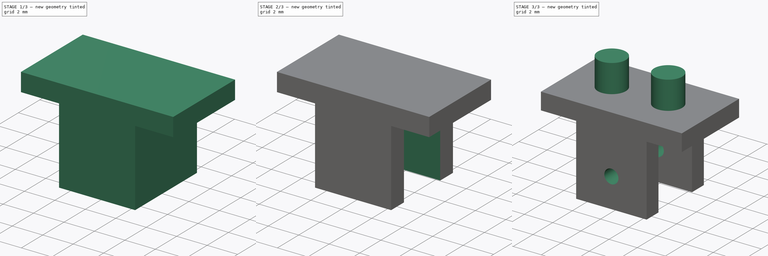
[diagram: build sequence overview — one tinted view per stage of 3, left to right]
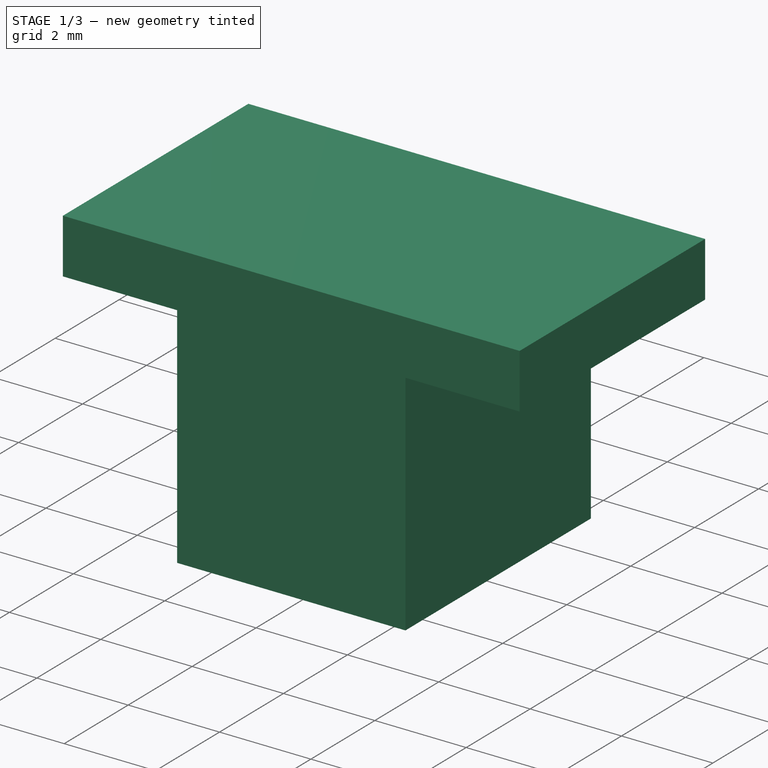
[diagram: stage 1 of 3 — iso view after this stage's code; geometry added in this stage tinted green]
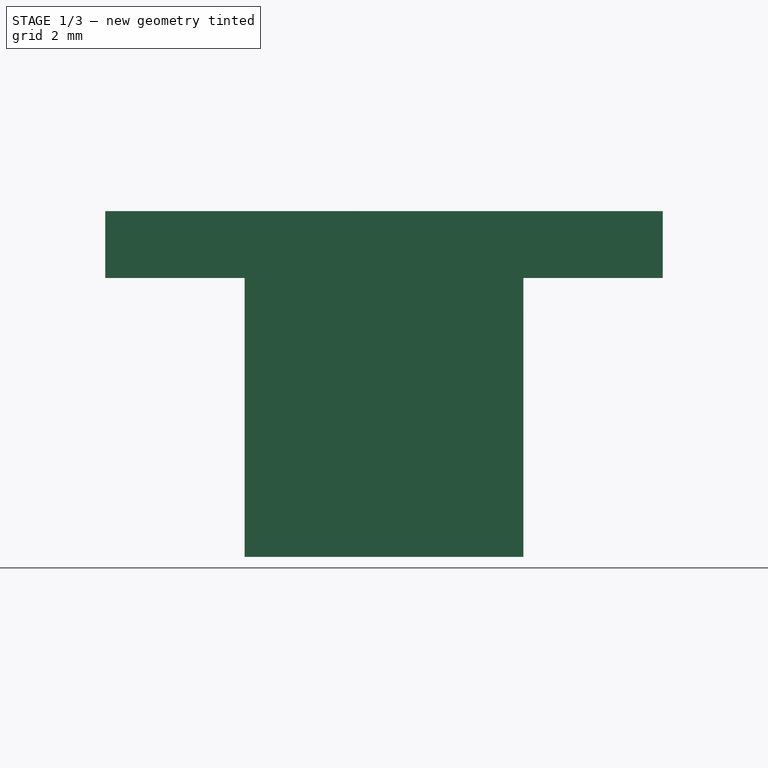
[diagram: stage 1 of 3 — front view after this stage's code; geometry added in this stage tinted green]
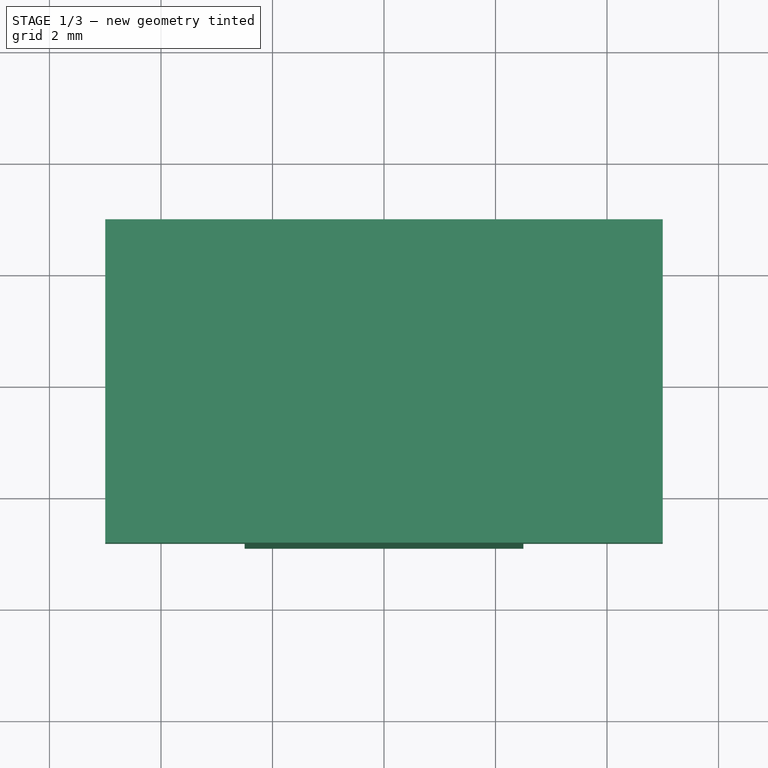
[diagram: stage 1 of 3 — top view after this stage's code; geometry added in this stage tinted green]
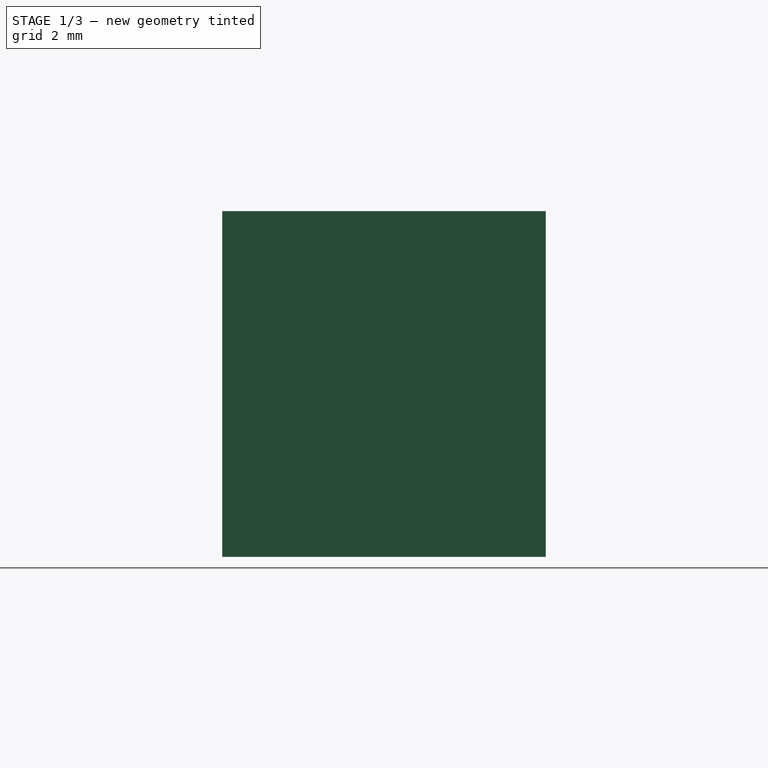
[diagram: stage 1 of 3 — right view after this stage's code; geometry added in this stage tinted green]
FCSTD DOCUMENT  (FreeCAD 0.16R6264 (Git))
Label: Dir_E
License: All rights reserved
LicenseURL: http://en.wikipedia.org/wiki/All_rights_reserved
objects: Sketcher::SketchObject×5, PartDesign::Pad×3, PartDesign::Pocket×2
note: 15 computed .brp shape members not serialized (recipe doc carries the construction recipe); baked Part::Feature solids carry a one-line shape summary decoded from their .brp

FEATURE [Sketcher::SketchObject] Sketch
  sketch-geometry (4):
    g0: LineSegment StartX=-5 StartY=2.9 StartZ=0 EndX=5 EndY=2.9 EndZ=0
    g1: LineSegment StartX=5 StartY=2.9 StartZ=0 EndX=5 EndY=-2.9 EndZ=0
    g2: LineSegment StartX=5 StartY=-2.9 StartZ=0 EndX=-5 EndY=-2.9 EndZ=0
    g3: LineSegment StartX=-5 StartY=-2.9 StartZ=0 EndX=-5 EndY=2.9 EndZ=0
  constraints (12):
    c: Coincident(g0,g1)
    c: Coincident(g1,g2)
    c: Coincident(g2,g3)
    c: Coincident(g3,g0)
    c: Horizontal(g0)
    c: Horizontal(g2)
    c: Vertical(g1)
    c: Vertical(g3)
    c: DistanceX(g0) = 10
    c: DistanceY(g1) = -5.8
    c: DistanceY(g0) = 2.9
    c: DistanceX(g0) = 5
FEATURE [PartDesign::Pad] Pad
  Length = 1.2
  Length2 = 100
  Sketch = -> Sketch
  Type = 0
FEATURE [Sketcher::SketchObject] Sketch001
  Placement = pos=(0,0,0) rot=(1,0,0;3.14159rad)
  Support = -> Pad [Face5]
  sketch-geometry (4):
    g0: LineSegment StartX=-2.5 StartY=2.9 StartZ=0 EndX=2.5 EndY=2.9 EndZ=0
    g1: LineSegment StartX=2.5 StartY=2.9 StartZ=0 EndX=2.5 EndY=-2.9 EndZ=0
    g2: LineSegment StartX=2.5 StartY=-2.9 StartZ=0 EndX=-2.5 EndY=-2.9 EndZ=0
    g3: LineSegment StartX=-2.5 StartY=-2.9 StartZ=0 EndX=-2.5 EndY=2.9 EndZ=0
  constraints (12):
    c: Coincident(g0,g1)
    c: Coincident(g1,g2)
    c: Coincident(g2,g3)
    c: Coincident(g3,g0)
    c: Horizontal(g0)
    c: Horizontal(g2)
    c: Vertical(g1)
    c: Vertical(g3)
    c: DistanceX(g0) = 5
    c: DistanceX(g0) = 2.5
    c: DistanceY(g1) = -5.8
    c: DistanceY(g0) = 2.9
FEATURE [PartDesign::Pad] Pad001
  Length = 5
  Length2 = 100
  Sketch = -> Sketch001
  Type = 0
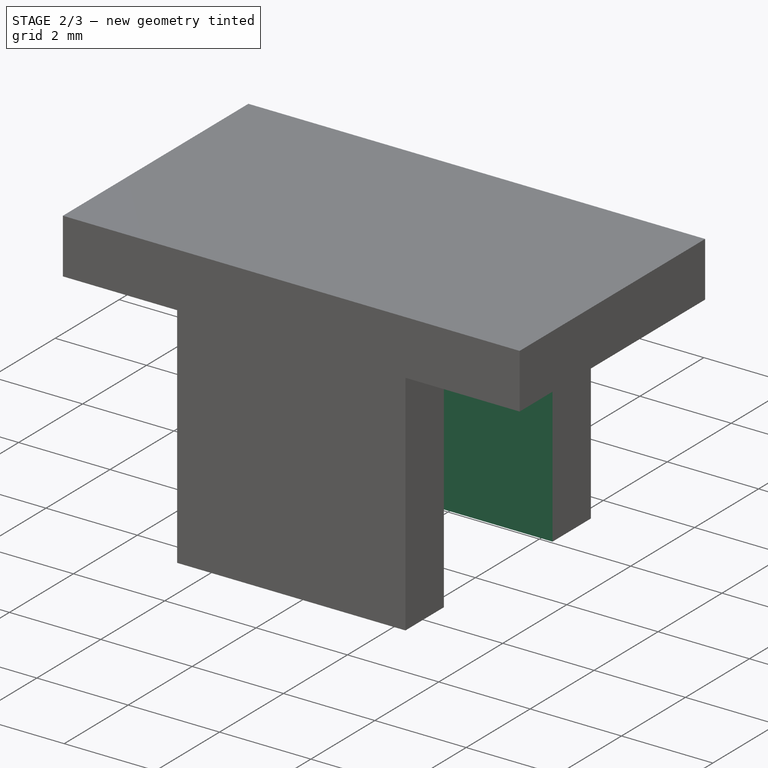
[diagram: stage 2 of 3 — iso view after this stage's code; geometry added in this stage tinted green]
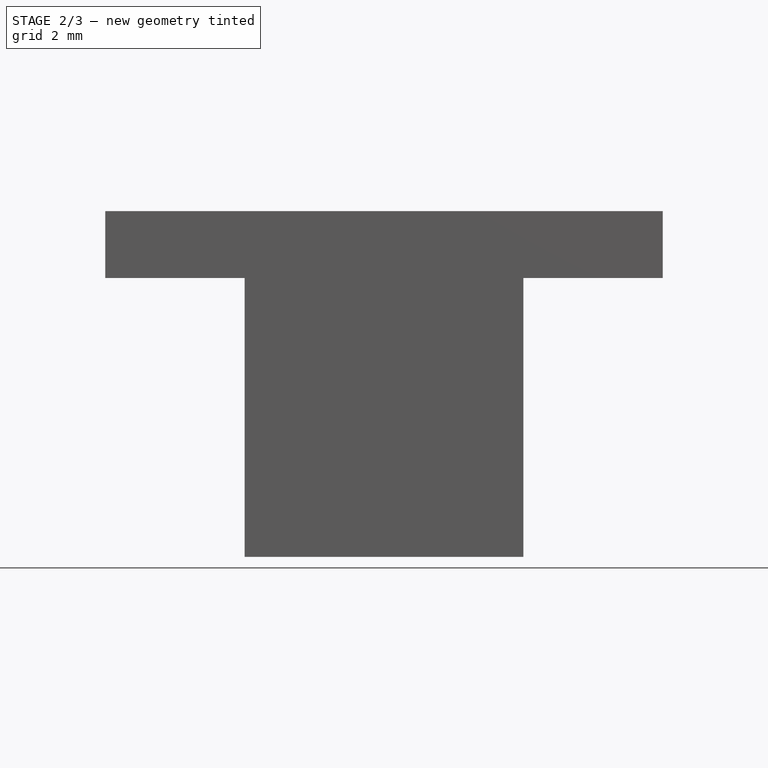
[diagram: stage 2 of 3 — front view after this stage's code; geometry added in this stage tinted green]
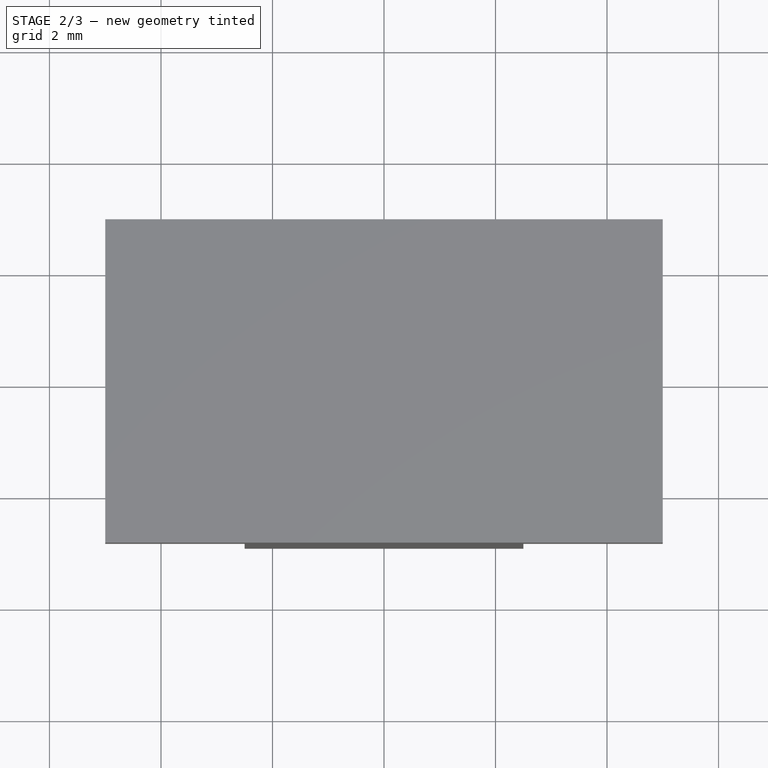
[diagram: stage 2 of 3 — top view after this stage's code; geometry added in this stage tinted green]
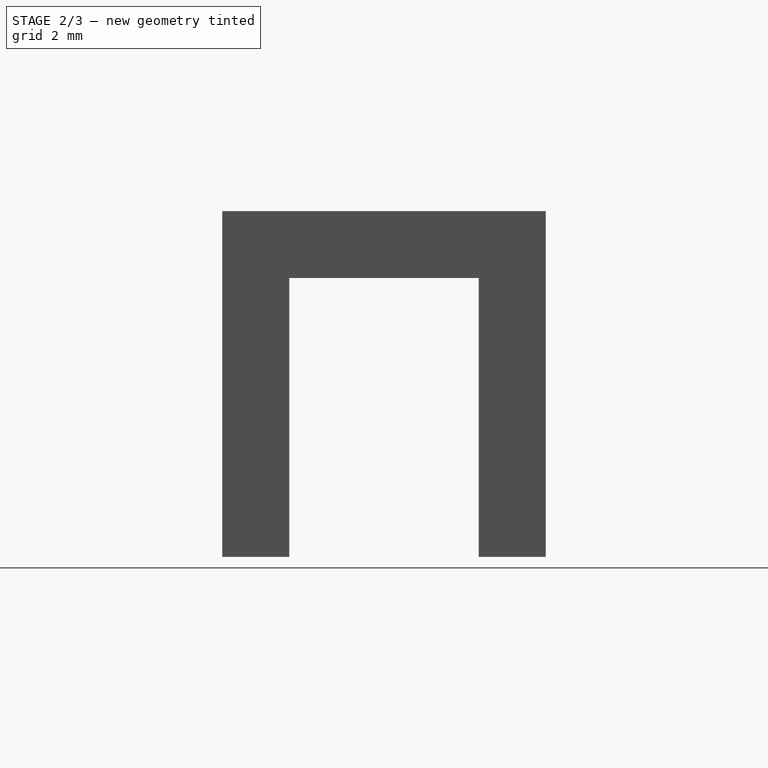
[diagram: stage 2 of 3 — right view after this stage's code; geometry added in this stage tinted green]
FEATURE [Sketcher::SketchObject] Sketch002
  Placement = pos=(0,0,-5) rot=(1,0,0;3.14159rad)
  Support = -> Pad001 [Face12]
  sketch-geometry (4):
    g0: LineSegment StartX=-2.5 StartY=1.7 StartZ=0 EndX=2.5 EndY=1.7 EndZ=0
    g1: LineSegment StartX=2.5 StartY=1.7 StartZ=0 EndX=2.5 EndY=-1.7 EndZ=0
    g2: LineSegment StartX=2.5 StartY=-1.7 StartZ=0 EndX=-2.5 EndY=-1.7 EndZ=0
    g3: LineSegment StartX=-2.5 StartY=-1.7 StartZ=0 EndX=-2.5 EndY=1.7 EndZ=0
  constraints (12):
    c: Coincident(g0,g1)
    c: Coincident(g1,g2)
    c: Coincident(g2,g3)
    c: Coincident(g3,g0)
    c: Horizontal(g0)
    c: Horizontal(g2)
    c: Vertical(g1)
    c: Vertical(g3)
    c: DistanceX(g0) = 5
    c: DistanceX(g0) = 2.5
    c: DistanceY(g1) = -3.4
    c: DistanceY(g0) = 1.7
FEATURE [PartDesign::Pocket] Pocket
  Length = 5
  Sketch = -> Sketch002
  Type = 0
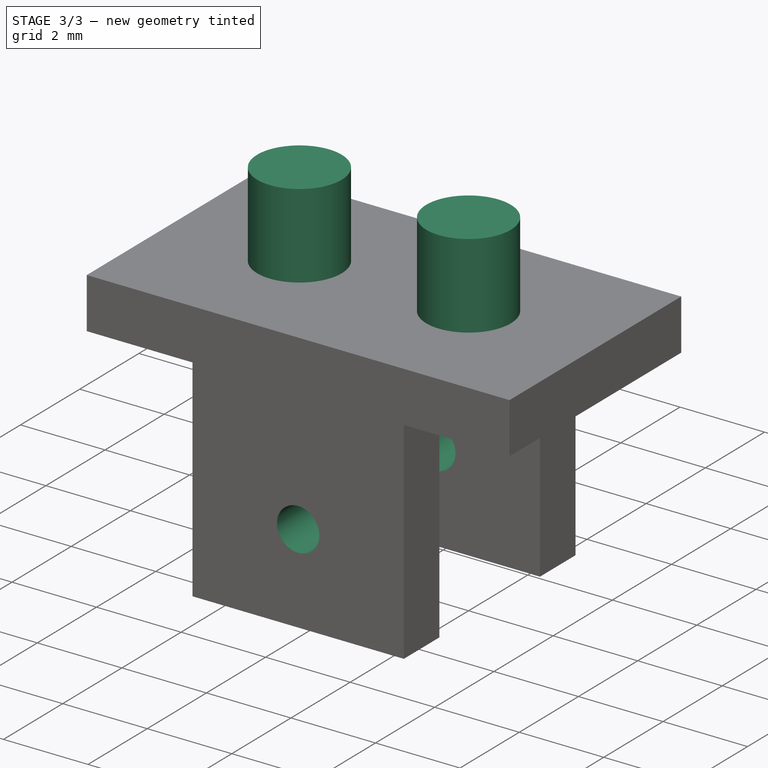
[diagram: stage 3 of 3 — iso view after this stage's code; geometry added in this stage tinted green]
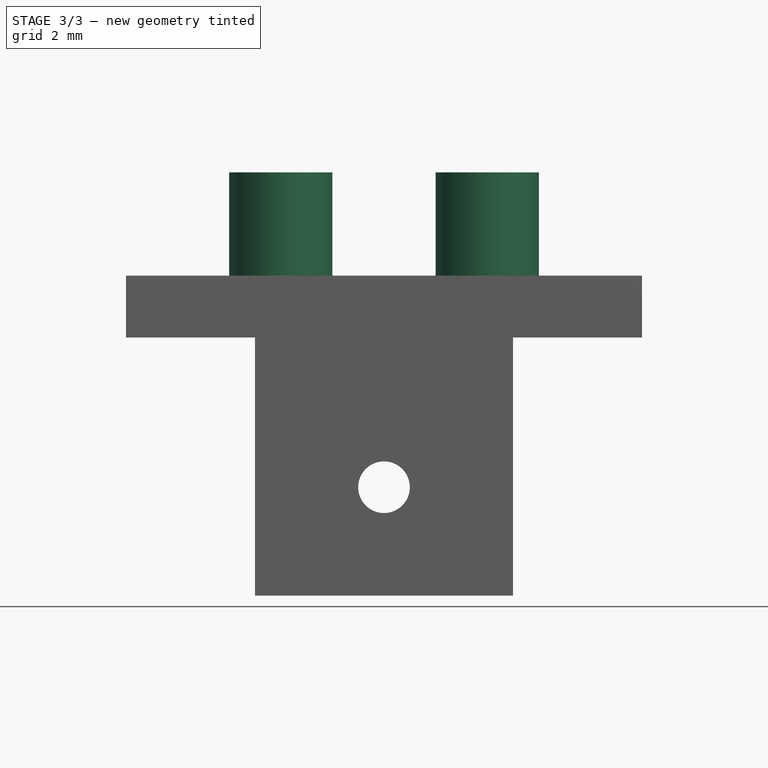
[diagram: stage 3 of 3 — front view after this stage's code; geometry added in this stage tinted green]
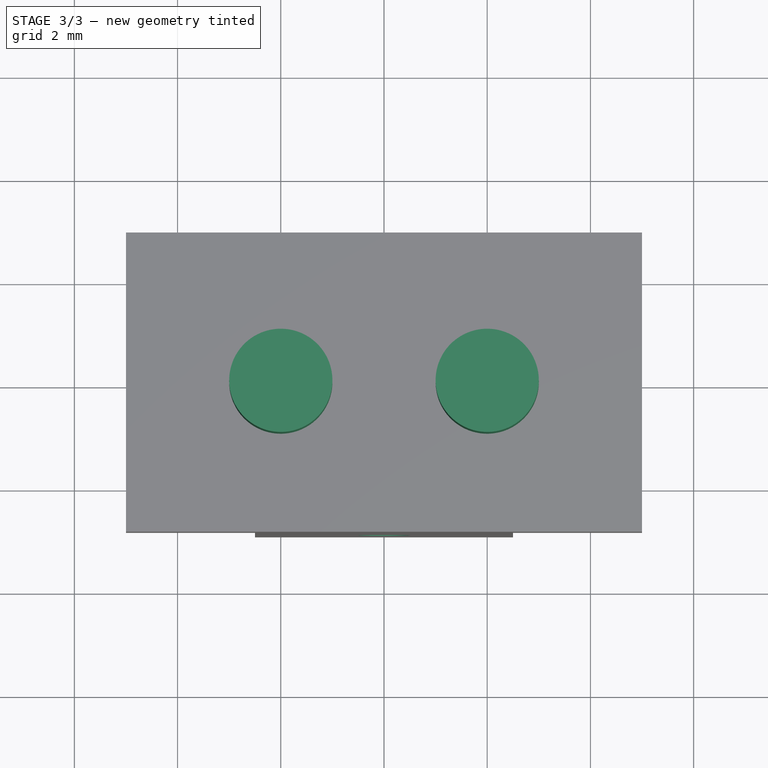
[diagram: stage 3 of 3 — top view after this stage's code; geometry added in this stage tinted green]
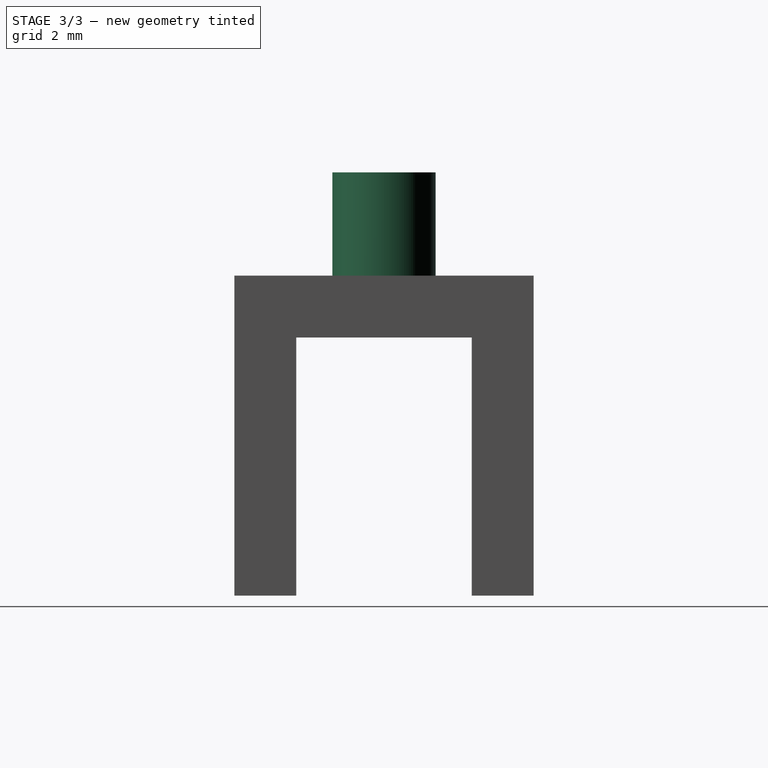
[diagram: stage 3 of 3 — right view after this stage's code; geometry added in this stage tinted green]
FEATURE [Sketcher::SketchObject] Sketch003
  Placement = pos=(0,-2.9,0) rot=(1,0,0;1.5708rad)
  Support = -> Pocket [Face8]
  sketch-geometry (1):
    g0: Circle CenterX=0 CenterY=-2.9 CenterZ=0 NormalX=0 NormalY=0 NormalZ=1 Radius=0.5
  constraints (3):
    c: PointOnObject(g0,g-2)
    c: DistanceY(g0) = -2.9
    c: Radius(g0) = 0.5
FEATURE [PartDesign::Pocket] Pocket001
  Length = 6
  Sketch = -> Sketch003
  Type = 0
FEATURE [Sketcher::SketchObject] Sketch004
  Placement = pos=(0,0,1.2) rot=(0,0,1;0rad)
  Support = -> Pocket001 [Face5]
  sketch-geometry (2):
    g0: Circle CenterX=-2 CenterY=0 CenterZ=0 NormalX=0 NormalY=0 NormalZ=1 Radius=1
    g1: Circle CenterX=2 CenterY=0 CenterZ=0 NormalX=0 NormalY=0 NormalZ=1 Radius=1
  constraints (6):
    c: PointOnObject(g0,g-1)
    c: PointOnObject(g1,g-1)
    c: DistanceX(g0,g1) = 4
    c: DistanceX(g1) = 2
    c: Radius(g1) = 1
    c: Equal(g1,g0)
FEATURE [PartDesign::Pad] Pad002
  Length = 2
  Length2 = 100
  Sketch = -> Sketch004
  Type = 0
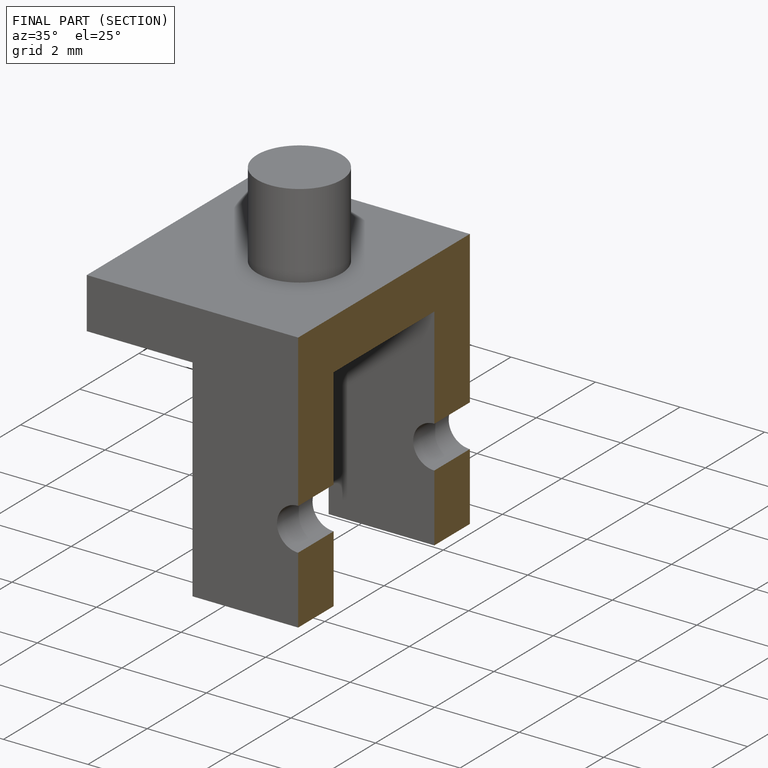
[diagram: finished part — half-section view (interior)]
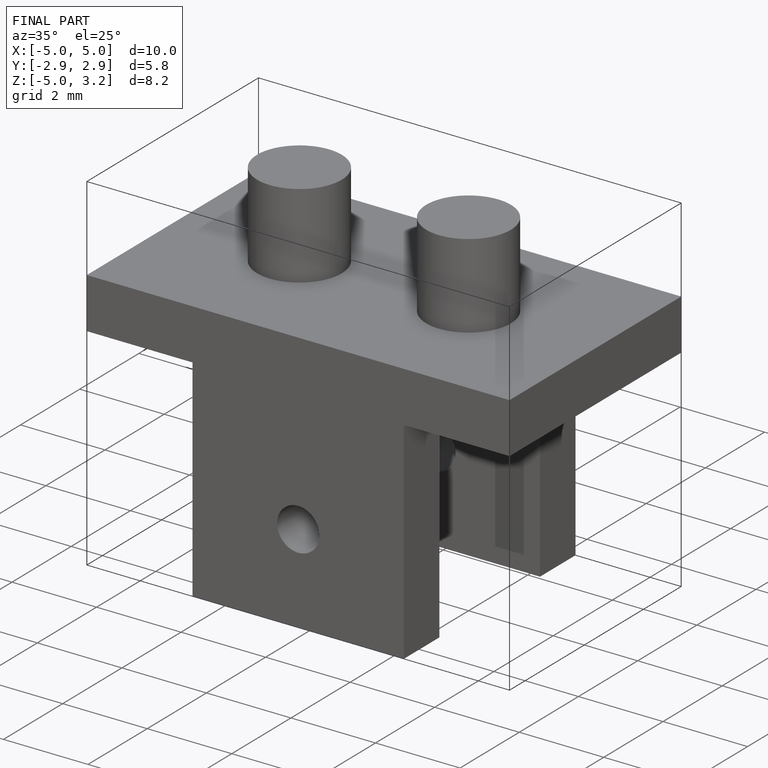
[diagram: finished part — iso view with bounding-box wireframe]
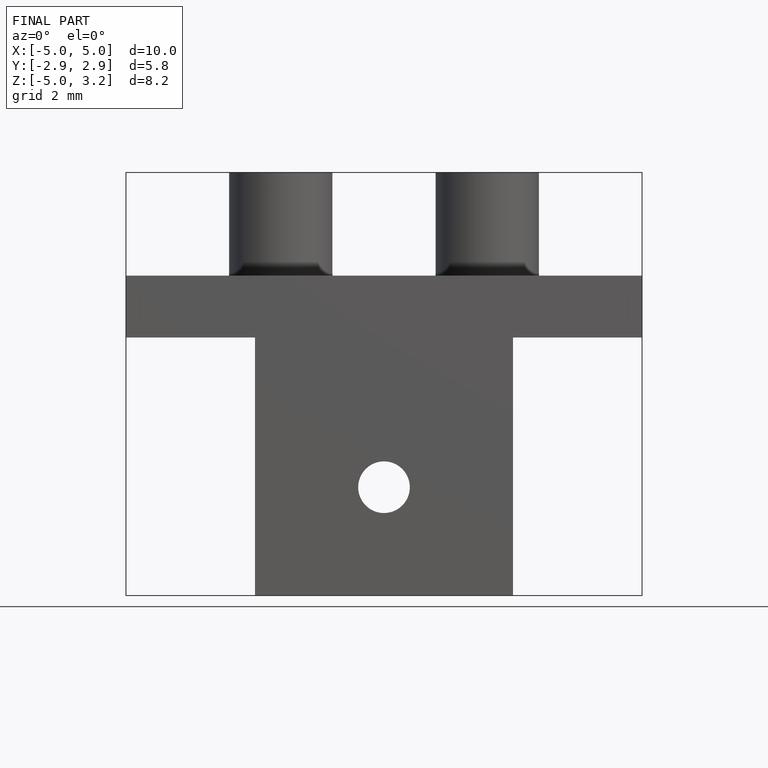
[diagram: finished part — front view with bounding-box wireframe]
